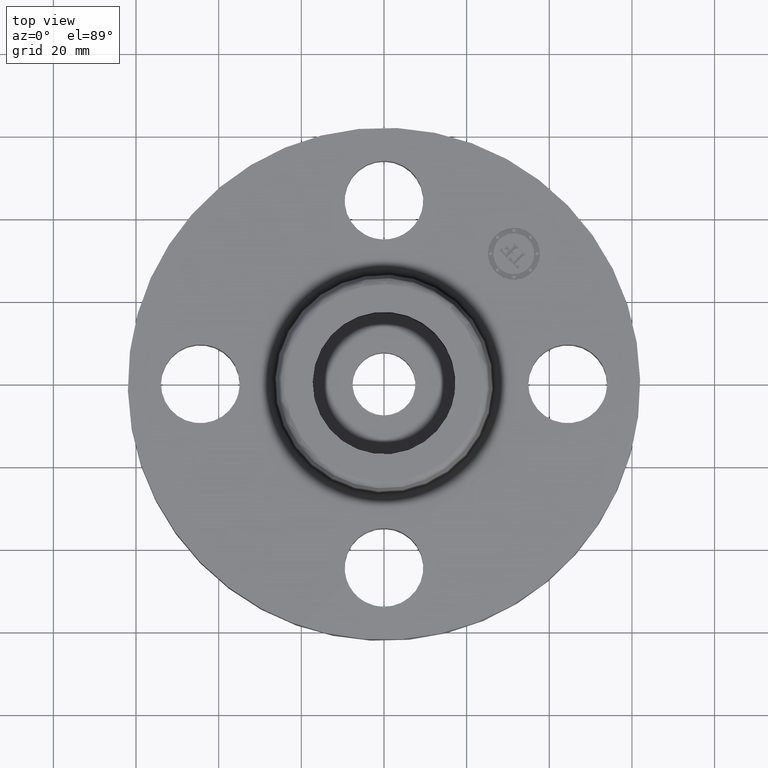
[diagram: clean part render]
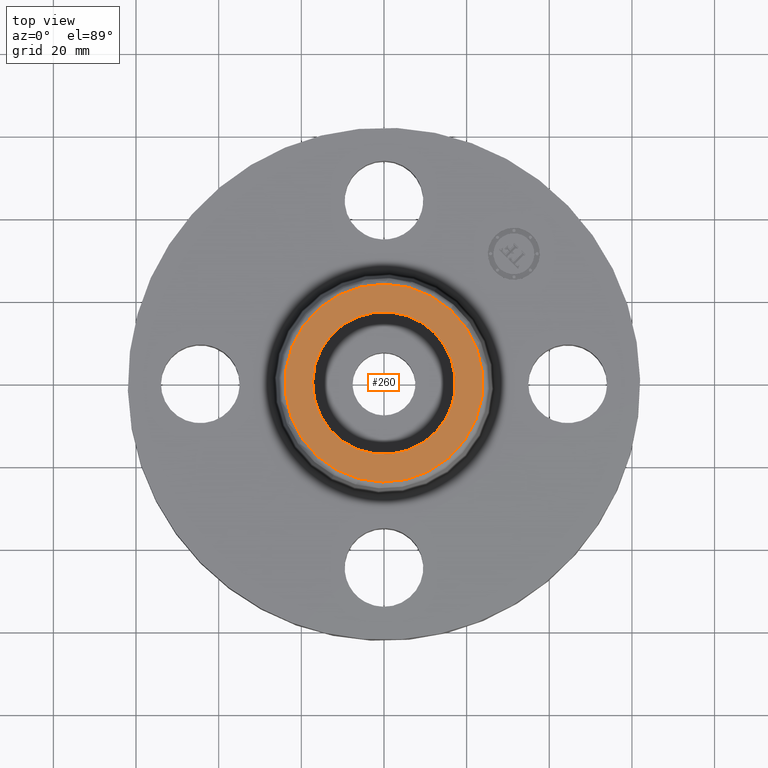
[diagram: same view with one face highlighted and labeled with its STEP entity id]
A machine part, top view. The second image highlights one B-rep face of the part: STEP entity #260.
In plain terms, the highlighted planar face has unit normal (0, 0, -1).
Its self-contained STEP definition (entity closure, byte-faithful):
#142=AXIS2_PLACEMENT_3D('Circle Axis2P3D',#140,#141,$) ;
#236=AXIS2_PLACEMENT_3D('Plane Axis2P3D',#233,#234,#235) ;
#240=AXIS2_PLACEMENT_3D('Circle Axis2P3D',#238,#239,$) ;
#249=AXIS2_PLACEMENT_3D('Circle Axis2P3D',#247,#248,$) ;
#91=CARTESIAN_POINT('Control Point',(-0.596756142088,0.326009366253,1.)) ;
#92=CARTESIAN_POINT('Control Point',(-0.545546710587,0.419747601851,0.999999999999)) ;
#93=CARTESIAN_POINT('Control Point',(-0.475931819566,0.503430889087,0.999999999999)) ;
#94=CARTESIAN_POINT('Control Point',(-0.390529134758,0.572224389438,0.999999999998)) ;
#95=CARTESIAN_POINT('Control Point',(-0.197351584244,0.672618295801,0.999999999997)) ;
#96=CARTESIAN_POINT('Control Point',(0.0194447785343,0.69251401253,0.999999999996)) ;
#97=CARTESIAN_POINT('Control Point',(0.128477946693,0.68076954557,0.999999999996)) ;
#98=CARTESIAN_POINT('Control Point',(0.336064314615,0.615161601608,0.999999999995)) ;
#99=CARTESIAN_POINT('Control Point',(0.503430889087,0.475931819566,0.999999999994)) ;
#100=CARTESIAN_POINT('Control Point',(0.572224389438,0.390529134758,0.999999999993)) ;
#101=CARTESIAN_POINT('Control Point',(0.672618295801,0.197351584244,0.999999999992)) ;
#102=CARTESIAN_POINT('Control Point',(0.69251401253,-0.0194447785341,0.999999999991)) ;
#103=CARTESIAN_POINT('Control Point',(0.68076954557,-0.128477946693,0.99999999999)) ;
#104=CARTESIAN_POINT('Control Point',(0.647965573589,-0.232271130654,0.99999999999)) ;
#105=CARTESIAN_POINT('Control Point',(0.596756142088,-0.326009366252,0.999999999989)) ;
#106=CARTESIAN_POINT('Vertex',(-0.596756142102,0.326009366287,1.)) ;
#108=CARTESIAN_POINT('Vertex',(0.596756142102,-0.326009366244,1.)) ;
#140=CARTESIAN_POINT('Axis2P3D Location',(0.,-6.99353086378E-017,0.999999999989)) ;
#233=CARTESIAN_POINT('Axis2P3D Location',(0.,0.942649769464,1.)) ;
#238=CARTESIAN_POINT('Axis2P3D Location',(-1.28118688012E-011,-8.42426740789E-012,1.)) ;
#242=CARTESIAN_POINT('Vertex',(0.451930373441,0.827252999652,1.)) ;
#244=CARTESIAN_POINT('Vertex',(-0.45193037344,-0.827252999652,1.)) ;
#247=CARTESIAN_POINT('Axis2P3D Location',(1.28118688012E-011,-2.24225187848E-011,1.)) ;
#141=DIRECTION('Axis2P3D Direction',(0.,0.,-0.0393700787402)) ;
#234=DIRECTION('Axis2P3D Direction',(0.,0.,-0.0393700787402)) ;
#235=DIRECTION('Axis2P3D XDirection',(0.0393700787402,0.,0.)) ;
#239=DIRECTION('Axis2P3D Direction',(0.,0.,-0.0393700787402)) ;
#248=DIRECTION('Axis2P3D Direction',(0.,0.,-0.0393700787402)) ;
#253=ORIENTED_EDGE('',*,*,#246,.F.) ;
#254=ORIENTED_EDGE('',*,*,#251,.F.) ;
#257=ORIENTED_EDGE('',*,*,#110,.T.) ;
#258=ORIENTED_EDGE('',*,*,#144,.T.) ;
#259=FACE_BOUND('',#256,.T.) ;
#260=ADVANCED_FACE('PartBody',(#255,#259),#237,.F.) ;
#90=B_SPLINE_CURVE_WITH_KNOTS('',5,(#91,#92,#93,#94,#95,#96,#97,#98,#99,#100,#101,#102,#103,#104,#105),.UNSPECIFIED.,.F.,.U.,(6,3,3,3,6),(-27.1307941565,-13.5653970783,-1.7763568394E-015,13.5653970783,27.1307941565),.UNSPECIFIED.) ;
#143=CIRCLE('generated circle',#142,0.680000000003) ;
#241=CIRCLE('generated circle',#240,0.942649769456) ;
#250=CIRCLE('generated circle',#249,0.942649769456) ;
#110=EDGE_CURVE('',#107,#109,#90,.T.) ;
#144=EDGE_CURVE('',#109,#107,#143,.T.) ;
#246=EDGE_CURVE('',#243,#245,#241,.T.) ;
#251=EDGE_CURVE('',#245,#243,#250,.T.) ;
#252=EDGE_LOOP('',(#253,#254)) ;
#256=EDGE_LOOP('',(#257,#258)) ;
#255=FACE_OUTER_BOUND('',#252,.T.) ;
#237=PLANE('',#236) ;
#107=VERTEX_POINT('',#106) ;
#109=VERTEX_POINT('',#108) ;
#243=VERTEX_POINT('',#242) ;
#245=VERTEX_POINT('',#244) ;